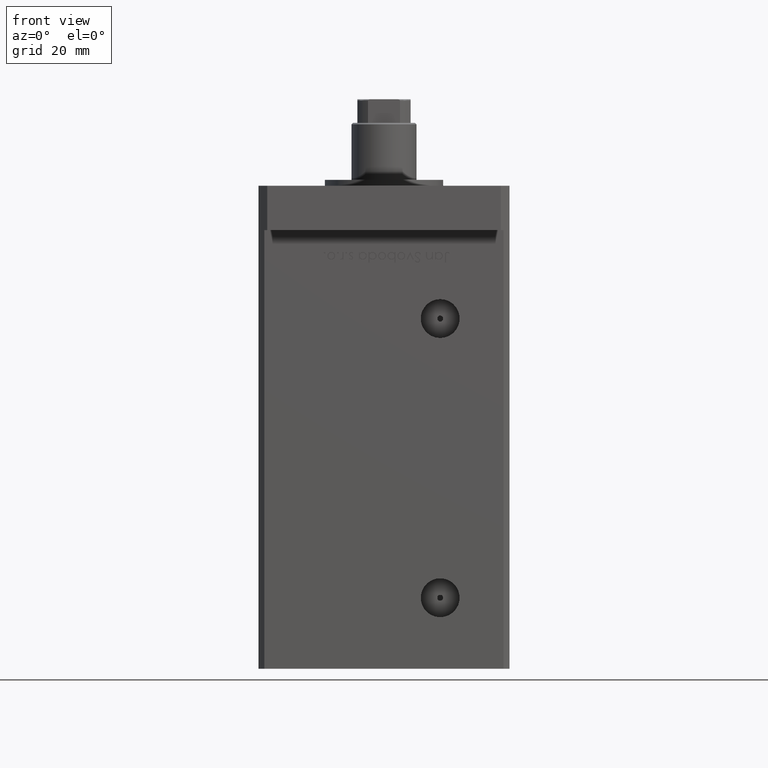
[diagram: clean part render]
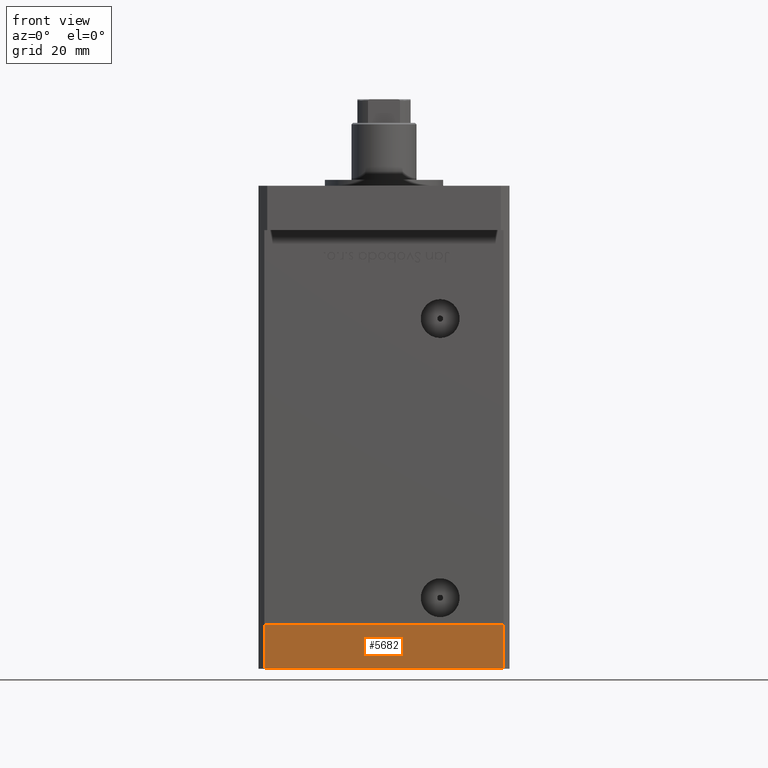
[diagram: same view with one face highlighted and labeled with its STEP entity id]
A machine part, front view. The second image highlights one B-rep face of the part: STEP entity #5682.
In plain terms, the highlighted planar face has unit normal (-0, -1, -0).
Its self-contained STEP definition (entity closure, byte-faithful):
#2820 = EDGE_CURVE ( 'NONE', #15245, #11384, #36475, .T. ) ;
#3314 = EDGE_CURVE ( 'NONE', #12204, #26944, #48481, .T. ) ;
#3345 = FACE_OUTER_BOUND ( 'NONE', #30542, .T. ) ;
#3457 = VECTOR ( 'NONE', #6704, 1000.000000000000000 ) ;
#3717 = DIRECTION ( 'NONE',  ( 0.000000000000000000, 0.000000000000000000, 1.000000000000000000 ) ) ;
#5682 = ADVANCED_FACE ( 'NONE', ( #3345 ), #16600, .T. ) ;
#6704 = DIRECTION ( 'NONE',  ( 1.000000000000000000, 1.713307136767217096E-16, 0.000000000000000000 ) ) ;
#7198 = ORIENTED_EDGE ( 'NONE', *, *, #3314, .F. ) ;
#8317 = CARTESIAN_POINT ( 'NONE',  ( -40.49999999999999289, -37.50000000000002132, -15.00000000000000000 ) ) ;
#8583 = CARTESIAN_POINT ( 'NONE',  ( 40.50000000000000000, -37.50000000000000711, 0.000000000000000000 ) ) ;
#10520 = CARTESIAN_POINT ( 'NONE',  ( -40.49999999999999289, -37.50000000000002132, -15.00000000000000000 ) ) ;
#11384 = VERTEX_POINT ( 'NONE', #8583 ) ;
#12204 = VERTEX_POINT ( 'NONE', #41092 ) ;
#15245 = VERTEX_POINT ( 'NONE', #30918 ) ;
#16600 = PLANE ( 'NONE',  #19653 ) ;
#18954 = EDGE_CURVE ( 'NONE', #12204, #15245, #27614, .T. ) ;
#19653 = AXIS2_PLACEMENT_3D ( 'NONE', #32365, #33150, #49679 ) ;
#21660 = ORIENTED_EDGE ( 'NONE', *, *, #18954, .T. ) ;
#22373 = LINE ( 'NONE', #51376, #22774 ) ;
#22774 = VECTOR ( 'NONE', #30770, 1000.000000000000000 ) ;
#26944 = VERTEX_POINT ( 'NONE', #51253 ) ;
#27614 = LINE ( 'NONE', #10520, #3457 ) ;
#28348 = DIRECTION ( 'NONE',  ( 0.000000000000000000, 0.000000000000000000, 1.000000000000000000 ) ) ;
#30542 = EDGE_LOOP ( 'NONE', ( #38459, #7198, #21660, #43612 ) ) ;
#30770 = DIRECTION ( 'NONE',  ( 1.000000000000000000, 1.713307136767217096E-16, 0.000000000000000000 ) ) ;
#30918 = CARTESIAN_POINT ( 'NONE',  ( 40.50000000000000000, -37.50000000000000711, -15.00000000000000000 ) ) ;
#32365 = CARTESIAN_POINT ( 'NONE',  ( -40.49999999999999289, -37.50000000000002132, -15.00000000000000000 ) ) ;
#33150 = DIRECTION ( 'NONE',  ( 1.713307136767217096E-16, -1.000000000000000000, 0.000000000000000000 ) ) ;
#36475 = LINE ( 'NONE', #44610, #40367 ) ;
#37741 = VECTOR ( 'NONE', #3717, 1000.000000000000000 ) ;
#38459 = ORIENTED_EDGE ( 'NONE', *, *, #47756, .F. ) ;
#40367 = VECTOR ( 'NONE', #28348, 1000.000000000000000 ) ;
#41092 = CARTESIAN_POINT ( 'NONE',  ( -40.49999999999999289, -37.50000000000002132, -15.00000000000000000 ) ) ;
#43612 = ORIENTED_EDGE ( 'NONE', *, *, #2820, .T. ) ;
#44610 = CARTESIAN_POINT ( 'NONE',  ( 40.50000000000000000, -37.50000000000000711, -15.00000000000000000 ) ) ;
#47756 = EDGE_CURVE ( 'NONE', #26944, #11384, #22373, .T. ) ;
#48481 = LINE ( 'NONE', #8317, #37741 ) ;
#49679 = DIRECTION ( 'NONE',  ( 1.000000000000000000, 1.713307136767217096E-16, 0.000000000000000000 ) ) ;
#51253 = CARTESIAN_POINT ( 'NONE',  ( -40.49999999999999289, -37.50000000000002132, 0.000000000000000000 ) ) ;
#51376 = CARTESIAN_POINT ( 'NONE',  ( -40.49999999999999289, -37.50000000000002132, 0.000000000000000000 ) ) ;